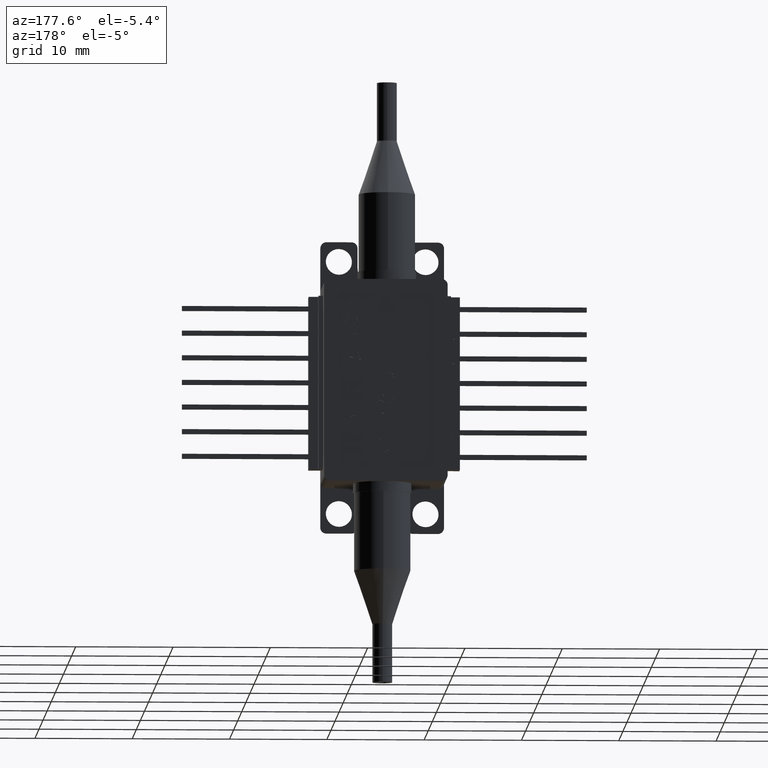
[diagram: clean part render]
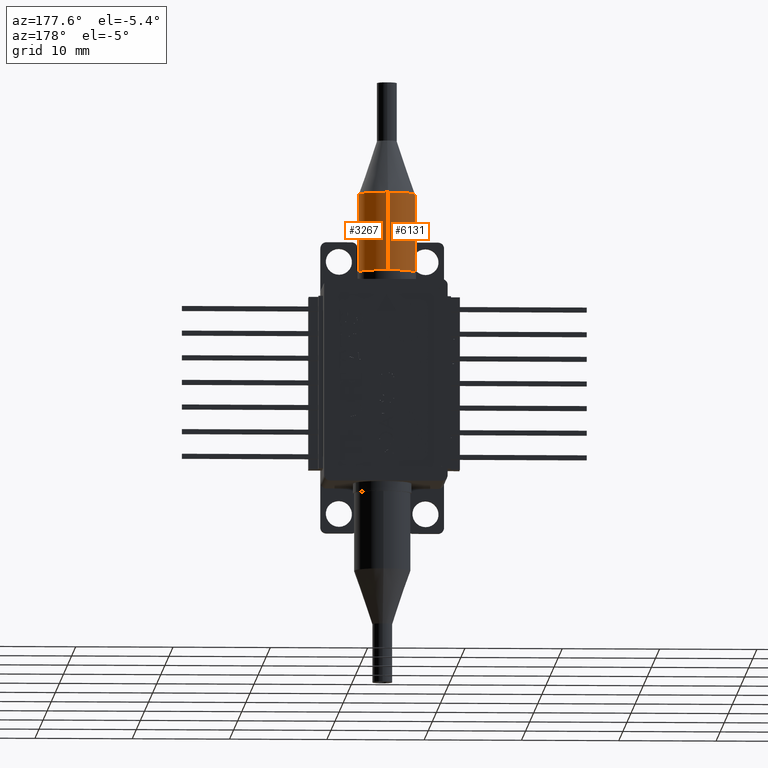
[diagram: same view with one multi-face feature highlighted, each face labeled with its STEP entity id]
A machine part, auxiliary view. The highlighted faces form ONE feature: a constant-radius fillet chain: 2 tangent blend faces with common blend radius 2.9 mm. The faces share edges in the B-rep.
Their STEP definitions:
[1] entity #3267 (Cylinder):
#1074 = DIRECTION ( 'NONE',  ( -0.0000000000000000000, -0.0000000000000000000, 1.000000000000000000 ) ) ;
#1130 = EDGE_CURVE ( 'NONE', #21657, #3303, #14059, .T. ) ;
#1445 = VERTEX_POINT ( 'NONE', #12924 ) ;
#1694 = ORIENTED_EDGE ( 'NONE', *, *, #1130, .T. ) ;
#2515 = ORIENTED_EDGE ( 'NONE', *, *, #18213, .F. ) ;
#2630 = DIRECTION ( 'NONE',  ( 0.0000000000000000000, -1.000000000000000000, 0.0000000000000000000 ) ) ;
#3267 = ADVANCED_FACE ( 'NONE', ( #10438 ), #8139, .T. ) ;
#3303 = VERTEX_POINT ( 'NONE', #11027 ) ;
#5109 = DIRECTION ( 'NONE',  ( -0.0000000000000000000, -0.0000000000000000000, 1.000000000000000000 ) ) ;
#5477 = CARTESIAN_POINT ( 'NONE',  ( -104.0441848420182964, 17.60485114794374439, 53.09721449318330855 ) ) ;
#5850 = LINE ( 'NONE', #13272, #18154 ) ;
#6366 = ORIENTED_EDGE ( 'NONE', *, *, #21258, .F. ) ;
#6422 = CARTESIAN_POINT ( 'NONE',  ( -104.0441848420182964, 20.50485114794374653, 53.09721449318330855 ) ) ;
#7563 = EDGE_CURVE ( 'NONE', #3303, #15993, #5850, .T. ) ;
#8102 = DIRECTION ( 'NONE',  ( 0.0000000000000000000, -1.000000000000000000, 0.0000000000000000000 ) ) ;
#8139 = CYLINDRICAL_SURFACE ( 'NONE', #9372, 2.899999999999999911 ) ;
#9372 = AXIS2_PLACEMENT_3D ( 'NONE', #14453, #1074, #2630 ) ;
#10438 = FACE_OUTER_BOUND ( 'NONE', #11336, .T. ) ;
#11027 = CARTESIAN_POINT ( 'NONE',  ( -104.0441848420182964, 23.40485114794374510, 53.09721449318330855 ) ) ;
#11336 = EDGE_LOOP ( 'NONE', ( #1694, #11511, #6366, #2515 ) ) ;
#11511 = ORIENTED_EDGE ( 'NONE', *, *, #7563, .T. ) ;
#12061 = CARTESIAN_POINT ( 'NONE',  ( -104.0441848420182964, 17.60485114794374439, 61.09721449318330855 ) ) ;
#12831 = DIRECTION ( 'NONE',  ( -0.0000000000000000000, -0.0000000000000000000, 1.000000000000000000 ) ) ;
#12904 = DIRECTION ( 'NONE',  ( 0.0000000000000000000, -1.000000000000000000, 0.0000000000000000000 ) ) ;
#12924 = CARTESIAN_POINT ( 'NONE',  ( -104.0441848420182964, 17.60485114794374439, 61.09721449318330855 ) ) ;
#13272 = CARTESIAN_POINT ( 'NONE',  ( -104.0441848420182964, 23.40485114794374510, 61.09721449318330855 ) ) ;
#14059 = CIRCLE ( 'NONE', #20719, 2.899999999999999911 ) ;
#14288 = CARTESIAN_POINT ( 'NONE',  ( -104.0441848420182964, 20.50485114794374653, 61.09721449318330855 ) ) ;
#14453 = CARTESIAN_POINT ( 'NONE',  ( -104.0441848420182964, 20.50485114794374653, 61.09721449318330855 ) ) ;
#15993 = VERTEX_POINT ( 'NONE', #16889 ) ;
#16311 = LINE ( 'NONE', #12061, #20796 ) ;
#16889 = CARTESIAN_POINT ( 'NONE',  ( -104.0441848420182964, 23.40485114794374510, 61.09721449318330855 ) ) ;
#18130 = DIRECTION ( 'NONE',  ( -0.0000000000000000000, -0.0000000000000000000, 1.000000000000000000 ) ) ;
#18154 = VECTOR ( 'NONE', #5109, 1000.000000000000000 ) ;
#18213 = EDGE_CURVE ( 'NONE', #21657, #1445, #16311, .T. ) ;
#18823 = DIRECTION ( 'NONE',  ( -0.0000000000000000000, -0.0000000000000000000, 1.000000000000000000 ) ) ;
#20495 = AXIS2_PLACEMENT_3D ( 'NONE', #14288, #12831, #12904 ) ;
#20719 = AXIS2_PLACEMENT_3D ( 'NONE', #6422, #18130, #8102 ) ;
#20796 = VECTOR ( 'NONE', #18823, 1000.000000000000000 ) ;
#20803 = CIRCLE ( 'NONE', #20495, 2.899999999999999911 ) ;
#21258 = EDGE_CURVE ( 'NONE', #1445, #15993, #20803, .T. ) ;
#21657 = VERTEX_POINT ( 'NONE', #5477 ) ;
[2] entity #6131 (Cylinder):
#447 = AXIS2_PLACEMENT_3D ( 'NONE', #15803, #12358, #14328 ) ;
#1445 = VERTEX_POINT ( 'NONE', #12924 ) ;
#3303 = VERTEX_POINT ( 'NONE', #11027 ) ;
#3763 = CIRCLE ( 'NONE', #5866, 2.899999999999999911 ) ;
#5109 = DIRECTION ( 'NONE',  ( -0.0000000000000000000, -0.0000000000000000000, 1.000000000000000000 ) ) ;
#5258 = ORIENTED_EDGE ( 'NONE', *, *, #9757, .T. ) ;
#5477 = CARTESIAN_POINT ( 'NONE',  ( -104.0441848420182964, 17.60485114794374439, 53.09721449318330855 ) ) ;
#5758 = ORIENTED_EDGE ( 'NONE', *, *, #7465, .F. ) ;
#5850 = LINE ( 'NONE', #13272, #18154 ) ;
#5866 = AXIS2_PLACEMENT_3D ( 'NONE', #12981, #16537, #6229 ) ;
#6131 = ADVANCED_FACE ( 'NONE', ( #7701 ), #20792, .T. ) ;
#6229 = DIRECTION ( 'NONE',  ( 0.0000000000000000000, -1.000000000000000000, 0.0000000000000000000 ) ) ;
#7465 = EDGE_CURVE ( 'NONE', #15993, #1445, #3763, .T. ) ;
#7563 = EDGE_CURVE ( 'NONE', #3303, #15993, #5850, .T. ) ;
#7701 = FACE_OUTER_BOUND ( 'NONE', #9878, .T. ) ;
#8068 = AXIS2_PLACEMENT_3D ( 'NONE', #17551, #10898, #14313 ) ;
#9757 = EDGE_CURVE ( 'NONE', #3303, #21657, #10386, .T. ) ;
#9878 = EDGE_LOOP ( 'NONE', ( #16814, #5258, #10753, #5758 ) ) ;
#10386 = CIRCLE ( 'NONE', #447, 2.899999999999999911 ) ;
#10753 = ORIENTED_EDGE ( 'NONE', *, *, #18213, .T. ) ;
#10898 = DIRECTION ( 'NONE',  ( -0.0000000000000000000, -0.0000000000000000000, 1.000000000000000000 ) ) ;
#11027 = CARTESIAN_POINT ( 'NONE',  ( -104.0441848420182964, 23.40485114794374510, 53.09721449318330855 ) ) ;
#12061 = CARTESIAN_POINT ( 'NONE',  ( -104.0441848420182964, 17.60485114794374439, 61.09721449318330855 ) ) ;
#12358 = DIRECTION ( 'NONE',  ( -0.0000000000000000000, -0.0000000000000000000, 1.000000000000000000 ) ) ;
#12924 = CARTESIAN_POINT ( 'NONE',  ( -104.0441848420182964, 17.60485114794374439, 61.09721449318330855 ) ) ;
#12981 = CARTESIAN_POINT ( 'NONE',  ( -104.0441848420182964, 20.50485114794374653, 61.09721449318330855 ) ) ;
#13272 = CARTESIAN_POINT ( 'NONE',  ( -104.0441848420182964, 23.40485114794374510, 61.09721449318330855 ) ) ;
#14313 = DIRECTION ( 'NONE',  ( 0.0000000000000000000, -1.000000000000000000, 0.0000000000000000000 ) ) ;
#14328 = DIRECTION ( 'NONE',  ( 0.0000000000000000000, -1.000000000000000000, 0.0000000000000000000 ) ) ;
#15803 = CARTESIAN_POINT ( 'NONE',  ( -104.0441848420182964, 20.50485114794374653, 53.09721449318330855 ) ) ;
#15993 = VERTEX_POINT ( 'NONE', #16889 ) ;
#16311 = LINE ( 'NONE', #12061, #20796 ) ;
#16537 = DIRECTION ( 'NONE',  ( -0.0000000000000000000, -0.0000000000000000000, 1.000000000000000000 ) ) ;
#16814 = ORIENTED_EDGE ( 'NONE', *, *, #7563, .F. ) ;
#16889 = CARTESIAN_POINT ( 'NONE',  ( -104.0441848420182964, 23.40485114794374510, 61.09721449318330855 ) ) ;
#17551 = CARTESIAN_POINT ( 'NONE',  ( -104.0441848420182964, 20.50485114794374653, 61.09721449318330855 ) ) ;
#18154 = VECTOR ( 'NONE', #5109, 1000.000000000000000 ) ;
#18213 = EDGE_CURVE ( 'NONE', #21657, #1445, #16311, .T. ) ;
#18823 = DIRECTION ( 'NONE',  ( -0.0000000000000000000, -0.0000000000000000000, 1.000000000000000000 ) ) ;
#20792 = CYLINDRICAL_SURFACE ( 'NONE', #8068, 2.899999999999999911 ) ;
#20796 = VECTOR ( 'NONE', #18823, 1000.000000000000000 ) ;
#21657 = VERTEX_POINT ( 'NONE', #5477 ) ;